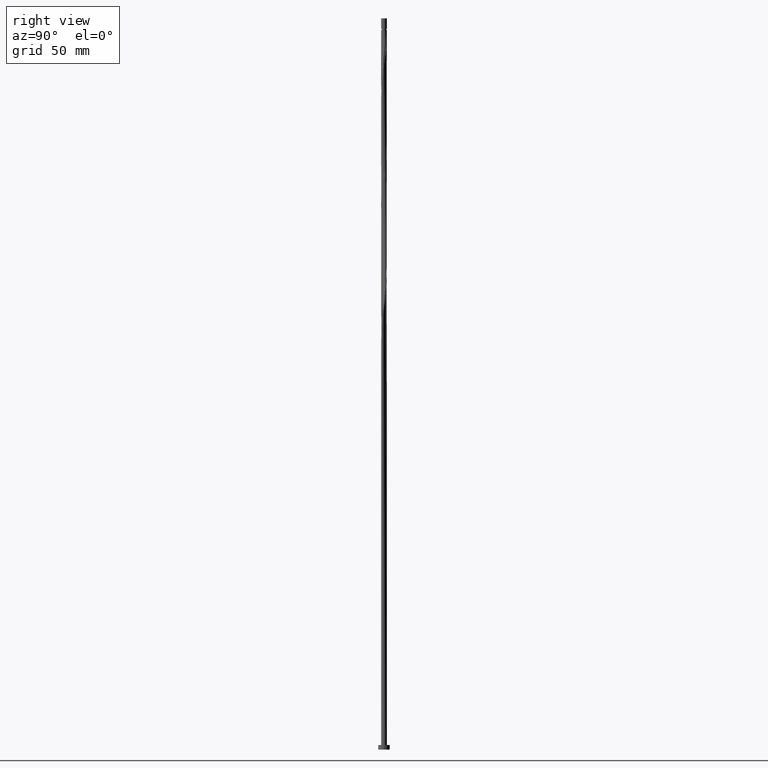
[diagram: clean part render]
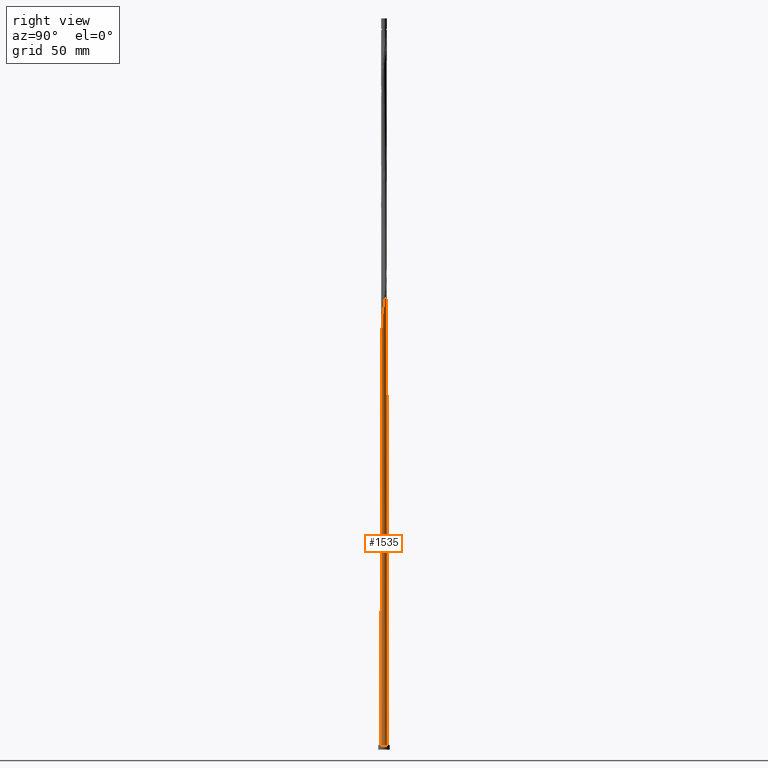
[diagram: same view with one face highlighted and labeled with its STEP entity id]
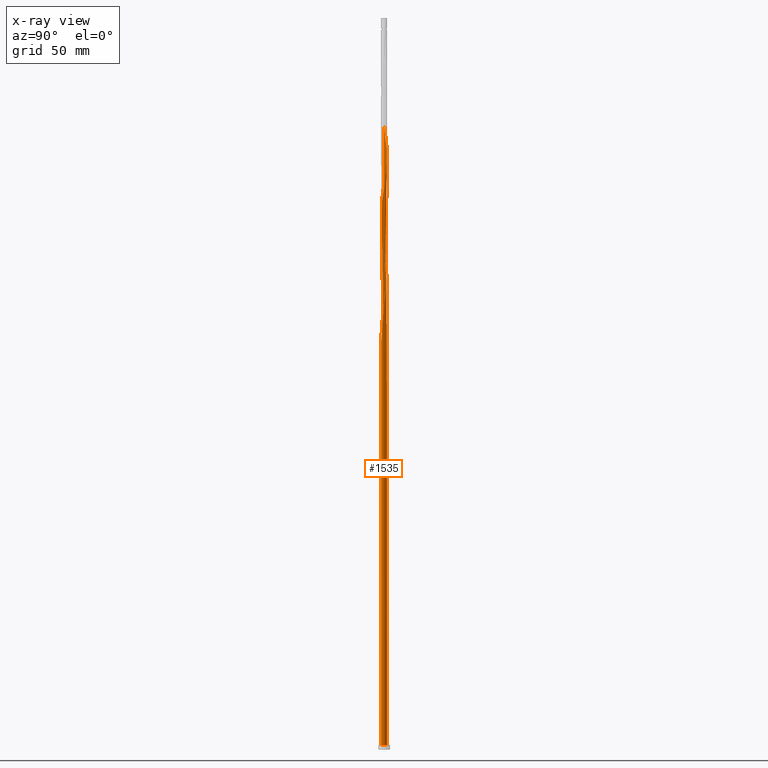
[diagram: x-ray of the same camera — body ghosted, the highlighted face saturated]
A machine part, right view. The second image highlights one B-rep face of the part: STEP entity #1535.
The next image is the same camera in x-ray: the body ghosted, the highlighted face saturated — about 0% of this face is hidden behind the body in this view.
In plain terms, the highlighted cylindrical surface (bore or boss wall) has radius 1.25 mm, axis along (-0, -0, -1).
Its self-contained STEP definition (entity closure, byte-faithful):
#5 = CARTESIAN_POINT ( 'NONE',  ( -0.5692968815294137119, -1.112834696026723247, 173.1227693201497573 ) ) ;
#12 = EDGE_CURVE ( 'NONE', #1615, #827, #559, .T. ) ;
#25 = CARTESIAN_POINT ( 'NONE',  ( -0.4439105247052356207, 1.176979049344605732, 157.1852693201497573 ) ) ;
#29 = CARTESIAN_POINT ( 'NONE',  ( 1.250000000000000000, 0.000000000000000000, 2.000000000000000000 ) ) ;
#32 = CARTESIAN_POINT ( 'NONE',  ( 0.03007788792010794229, 1.249638075867676612, 203.1227693201497004 ) ) ;
#36 = EDGE_CURVE ( 'NONE', #827, #1472, #1528, .T. ) ;
#44 = CARTESIAN_POINT ( 'NONE',  ( -1.253027039925622255, -0.1107225078990215217, 217.1852693201498710 ) ) ;
#47 = CARTESIAN_POINT ( 'NONE',  ( -1.250000000000000000, 0.000000000000000000, 2.000000000000000000 ) ) ;
#54 = CARTESIAN_POINT ( 'NONE',  ( 1.225000000000000977, 0.2487468592766574615, 191.8727693201497289 ) ) ;
#61 = EDGE_CURVE ( 'NONE', #513, #1472, #809, .T. ) ;
#64 = CARTESIAN_POINT ( 'NONE',  ( 1.196972960074381698, 0.3867712106542938177, 192.8102693201498141 ) ) ;
#66 = CARTESIAN_POINT ( 'NONE',  ( 0.000000000000000000, 0.000000000000000000, 152.4977693201497857 ) ) ;
#74 = CARTESIAN_POINT ( 'NONE',  ( 1.138935308977793159, 0.5150984002728630218, 193.7477693201497289 ) ) ;
#75 = ORIENTED_EDGE ( 'NONE', *, *, #278, .F. ) ;
#91 = CARTESIAN_POINT ( 'NONE',  ( 0.9957596457837593062, 0.7556207566157816524, 248.1227693201496720 ) ) ;
#92 = ORIENTED_EDGE ( 'NONE', *, *, #61, .T. ) ;
#101 = CARTESIAN_POINT ( 'NONE',  ( -0.8678159233401319117, 0.9106216336863132144, 262.1852693201499278 ) ) ;
#107 = CARTESIAN_POINT ( 'NONE',  ( 1.176979049344608397, -0.4439105247052367864, 239.6852693201498141 ) ) ;
#128 = CARTESIAN_POINT ( 'NONE',  ( -0.3073944042222366835, -1.211614080577170016, 174.9977693201497004 ) ) ;
#133 = DIRECTION ( 'NONE',  ( -0.000000000000000000, -0.000000000000000000, -1.000000000000000000 ) ) ;
#142 = CARTESIAN_POINT ( 'NONE',  ( 0.8678159233401315786, -0.9106216336863132144, 183.4352693201498141 ) ) ;
#173 = CARTESIAN_POINT ( 'NONE',  ( -0.8678159233401319117, 0.9106216336863132144, 209.6852693201497857 ) ) ;
#186 = CARTESIAN_POINT ( 'NONE',  ( 0.000000000000000000, 0.000000000000000000, 315.0000000000000000 ) ) ;
#192 = CARTESIAN_POINT ( 'NONE',  ( -1.176979049344608397, 0.4439105247052366754, 213.4352693201498710 ) ) ;
#204 = CARTESIAN_POINT ( 'NONE',  ( 0.9957596457837593062, 0.7556207566157816524, 195.6227693201497289 ) ) ;
#213 = CARTESIAN_POINT ( 'NONE',  ( 0.3073944042222367945, 1.211614080577170016, 253.7477693201496436 ) ) ;
#222 = CARTESIAN_POINT ( 'NONE',  ( 1.253027039925622255, 0.1107225078990213690, 243.4352693201498141 ) ) ;
#242 = CARTESIAN_POINT ( 'NONE',  ( -0.9957596457837590842, -0.7556207566157816524, 221.8727693201497004 ) ) ;
#245 = CARTESIAN_POINT ( 'NONE',  ( -1.196972960074381698, -0.3867712106542939843, 166.5602693201498425 ) ) ;
#251 = VERTEX_POINT ( 'NONE', #929 ) ;
#252 = CARTESIAN_POINT ( 'NONE',  ( -1.250000000000000000, 0.000000000000000000, 315.0000000000000000 ) ) ;
#258 = CARTESIAN_POINT ( 'NONE',  ( -1.249638075867676612, 0.03007788792010769943, 163.7477693201497573 ) ) ;
#265 = CARTESIAN_POINT ( 'NONE',  ( -1.250000000000000444, -9.365922884757042694E-16, 167.2972863980559168 ) ) ;
#269 = CARTESIAN_POINT ( 'NONE',  ( -1.112834696026723247, 0.5692968815294137119, 159.9977693201497573 ) ) ;
#278 = EDGE_CURVE ( 'NONE', #1058, #1514, #1361, .T. ) ;
#283 = CARTESIAN_POINT ( 'NONE',  ( -1.250000000000001776, 0.01504112145799079911, 163.8478895540185647 ) ) ;
#284 = CARTESIAN_POINT ( 'NONE',  ( 0.3867712106542939288, -1.196972960074381698, 179.6852693201498425 ) ) ;
#312 = CARTESIAN_POINT ( 'NONE',  ( -0.1107225078990212996, 1.253027039925622255, 204.0602693201498141 ) ) ;
#336 = CARTESIAN_POINT ( 'NONE',  ( 1.080897657881205953, 0.6434255898914326144, 194.6852693201498425 ) ) ;
#338 = CARTESIAN_POINT ( 'NONE',  ( -1.250000000000001998, -2.723953667678323534E-16, 268.9482522422436546 ) ) ;
#347 = CARTESIAN_POINT ( 'NONE',  ( -1.249638075867676612, 0.03007788792010769943, 216.2477693201497289 ) ) ;
#359 = CARTESIAN_POINT ( 'NONE',  ( -1.250000000000001998, 0.01504112145798415685, 268.8478895540185931 ) ) ;
#369 = CARTESIAN_POINT ( 'NONE',  ( 1.048690342708839429, -0.6946832383535915811, 237.8102693201498141 ) ) ;
#378 = CARTESIAN_POINT ( 'NONE',  ( -0.7556207566157816524, 0.9957596457837590842, 261.2477693201497004 ) ) ;
#387 = CARTESIAN_POINT ( 'NONE',  ( -0.4439105247052367864, -1.176979049344608397, 226.5602693201498710 ) ) ;
#390 = CARTESIAN_POINT ( 'NONE',  ( -1.250000000000003109, -0.1256297269073991807, 164.7865233212073690 ) ) ;
#401 = EDGE_LOOP ( 'NONE', ( #75, #1777, #656, #1128, #92, #1077, #684, #1382, #1505 ) ) ;
#408 = CARTESIAN_POINT ( 'NONE',  ( -0.9582531330244848933, 0.8026524360199516206, 158.1227693201497289 ) ) ;
#410 = CARTESIAN_POINT ( 'NONE',  ( 0.1107225078990214107, -1.253027039925622255, 177.8102693201498425 ) ) ;
#416 = CARTESIAN_POINT ( 'NONE',  ( -0.9957596457837575299, 0.7556207566157809863, 161.8727693201497857 ) ) ;
#418 = EDGE_CURVE ( 'NONE', #827, #1058, #635, .T. ) ;
#420 = DIRECTION ( 'NONE',  ( 0.000000000000000000, 0.000000000000000000, 1.000000000000000000 ) ) ;
#422 = CARTESIAN_POINT ( 'NONE',  ( 0.6434255898914326144, -1.080897657881205953, 181.5602693201498425 ) ) ;
#427 = CARTESIAN_POINT ( 'NONE',  ( -1.138935308977791161, 0.5150984002728626887, 163.7477693201497573 ) ) ;
#429 = AXIS2_PLACEMENT_3D ( 'NONE', #186, #1487, #1170 ) ;
#431 = CARTESIAN_POINT ( 'NONE',  ( -1.250000000000002220, 1.285482244541345349E-15, 163.9482522422436830 ) ) ;
#448 = CARTESIAN_POINT ( 'NONE',  ( 0.2487468592766579056, 1.224999999999999645, 152.4977693201497857 ) ) ;
#459 = CARTESIAN_POINT ( 'NONE',  ( 1.048690342708839429, -0.6946832383535915811, 185.3102693201498141 ) ) ;
#462 = FACE_OUTER_BOUND ( 'NONE', #401, .T. ) ;
#474 = CARTESIAN_POINT ( 'NONE',  ( 0.000000000000000000, 0.000000000000000000, 2.000000000000000000 ) ) ;
#491 = CARTESIAN_POINT ( 'NONE',  ( -0.2487468592766573505, 1.225000000000000977, 204.9977693201496436 ) ) ;
#500 = CARTESIAN_POINT ( 'NONE',  ( -0.8026524360199519537, -0.9582531330244850043, 223.7477693201497573 ) ) ;
#512 = CARTESIAN_POINT ( 'NONE',  ( -0.6946832383535914701, -1.048690342708839429, 224.6852693201497857 ) ) ;
#513 = VERTEX_POINT ( 'NONE', #29 ) ;
#520 = CARTESIAN_POINT ( 'NONE',  ( 0.9106216336863132144, 0.8678159233401314676, 249.0602693201498425 ) ) ;
#530 = CARTESIAN_POINT ( 'NONE',  ( 0.03007788792010794229, 1.249638075867676612, 255.6227693201497004 ) ) ;
#537 = CARTESIAN_POINT ( 'NONE',  ( -0.1708782837392370246, -1.246249111809732968, 228.4352693201498425 ) ) ;
#556 = CARTESIAN_POINT ( 'NONE',  ( -0.6434255898914328364, 1.080897657881205953, 155.3102693201497857 ) ) ;
#557 = CARTESIAN_POINT ( 'NONE',  ( -0.03007788792010775147, -1.249638075867676612, 176.8727693201497289 ) ) ;
#559 =( BOUNDED_CURVE ( )  B_SPLINE_CURVE ( 2, ( #1000, #1561, #967, #556, #1805, #1693, #408, #1536, #269, #1685, #848, #865, #258, #283, #431 ),
 .UNSPECIFIED., .F., .T. ) 
 B_SPLINE_CURVE_WITH_KNOTS ( ( 3, 2, 2, 2, 2, 2, 2, 3 ),
 ( 0.000000000000000000, 0.008928571428571396851, 0.01785714285714290472, 0.02678571428571430157, 0.03571428571428569843, 0.04464285714285708834, 0.05357142857142860315, 0.05453034012992177132 ),
 .UNSPECIFIED. ) 
 CURVE ( )  GEOMETRIC_REPRESENTATION_ITEM ( )  RATIONAL_B_SPLINE_CURVE ( ( 0.9090909090910003210, 0.9033747362666745273, 0.9090909090910003210, 0.9033747362666745273, 0.9090909090910003210, 0.9033747362666745273, 0.9090909090910003210, 0.9033747362666745273, 0.9090909090910003210, 0.9033747362666745273, 0.9090909090910003210, 0.9033747362666745273, 0.9090909090910003210, 0.9084770030215422176, 0.9079949616362705811 ) ) 
 REPRESENTATION_ITEM ( '' )  );
#575 = CARTESIAN_POINT ( 'NONE',  ( 0.9582531330244847823, -0.8026524360199519537, 184.3727693201497857 ) ) ;
#590 = CARTESIAN_POINT ( 'NONE',  ( 0.1107225078990215772, 1.253027039925620034, 153.4352693201497857 ) ) ;
#593 = CARTESIAN_POINT ( 'NONE',  ( -0.6946832383535914701, -1.048690342708839429, 172.1852693201497857 ) ) ;
#603 = CARTESIAN_POINT ( 'NONE',  ( 0.6946832383535916922, 1.048690342708839429, 198.4352693201498425 ) ) ;
#614 = CARTESIAN_POINT ( 'NONE',  ( -1.225000000000000977, -0.2487468592766576281, 218.1227693201497857 ) ) ;
#635 =( BOUNDED_CURVE ( )  B_SPLINE_CURVE ( 2, ( #1377, #390, #1516, #245, #821, #1562, #866, #1250, #1284, #593, #5, #1392, #128, #1537, #557, #410, #1258, #284, #842, #422, #984, #142, #575, #459, #1018, #1317, #756, #1049, #1009, #1604, #54, #64, #74, #336, #204, #1614, #636, #603, #1578, #1293, #1190, #1145, #32, #312, #491, #1179, #1463, #1703, #884, #173, #1442, #1729, #745, #192, #766, #1305, #347, #44, #614, #779, #1167, #925, #242, #1066, #500, #512, #826, #387, #1356, #537, #1765, #934, #1776, #1495, #810, #1057, #1367, #1634, #645, #369, #683, #107, #953, #1092, #1513, #222, #1484, #1521, #1781, #799, #91, #520, #667, #1218, #1374, #1381, #213, #1198, #530, #1085, #1076, #818, #1642, #1651, #378, #101, #1233, #1623, #960, #943, #1659, #1504, #676, #359, #1226 ),
 .UNSPECIFIED., .F., .T. ) 
 B_SPLINE_CURVE_WITH_KNOTS ( ( 3, 2, 2, 2, 2, 2, 2, 2, 2, 2, 2, 2, 2, 2, 2, 2, 2, 2, 2, 2, 2, 2, 2, 2, 2, 2, 2, 2, 2, 2, 2, 2, 2, 2, 2, 2, 2, 2, 2, 2, 2, 2, 2, 2, 2, 2, 2, 2, 2, 2, 2, 2, 2, 2, 2, 2, 2, 3 ),
 ( 0.05453034012992177132, 0.06250000000000000000, 0.07142857142857139685, 0.08035714285714290472, 0.08928571428571430157, 0.09821428571428569843, 0.1071428571428570953, 0.1160714285714286031, 0.1250000000000000000, 0.1339285714285713969, 0.1428571428571429047, 0.1517857142857143016, 0.1607142857142856984, 0.1696428571428570953, 0.1785714285714286031, 0.1875000000000000000, 0.1964285714285713969, 0.2053571428571429047, 0.2142857142857143016, 0.2232142857142856984, 0.2321428571428570953, 0.2410714285714286031, 0.2500000000000000000, 0.2589285714285713969, 0.2678571428571429047, 0.2767857142857143016, 0.2857142857142856984, 0.2946428571428570953, 0.3035714285714286031, 0.3125000000000000000, 0.3214285714285713969, 0.3303571428571429047, 0.3392857142857143016, 0.3482142857142856984, 0.3571428571428570953, 0.3660714285714286031, 0.3750000000000000000, 0.3839285714285713969, 0.3928571428571429047, 0.4017857142857143016, 0.4107142857142856984, 0.4196428571428570953, 0.4285714285714286031, 0.4375000000000000000, 0.4464285714285713969, 0.4553571428571429047, 0.4642857142857143016, 0.4732142857142856984, 0.4821428571428570953, 0.4910714285714286031, 0.5000000000000000000, 0.5089285714285713969, 0.5178571428571427937, 0.5267857142857143016, 0.5357142857142856984, 0.5446428571428572063, 0.5535714285714286031, 0.5545303401299221946 ),
 .UNSPECIFIED. ) 
 CURVE ( )  GEOMETRIC_REPRESENTATION_ITEM ( )  RATIONAL_B_SPLINE_CURVE ( ( 0.9079949616362705811, 0.9039886423361327417, 0.9090909090910003210, 0.9033747362666745273, 0.9090909090910003210, 0.9033747362666745273, 0.9090909090910003210, 0.9033747362666745273, 0.9090909090910003210, 0.9033747362666745273, 0.9090909090910003210, 0.9033747362666745273, 0.9090909090910003210, 0.9033747362666745273, 0.9090909090910003210, 0.9033747362666745273, 0.9090909090910003210, 0.9033747362666745273, 0.9090909090910003210, 0.9033747362666745273, 0.9090909090910003210, 0.9033747362666745273, 0.9090909090910003210, 0.9033747362666745273, 0.9090909090910003210, 0.9033747362666745273, 0.9090909090910003210, 0.9033747362666745273, 0.9090909090910003210, 0.9033747362666745273, 0.9090909090910003210, 0.9033747362666745273, 0.9090909090910003210, 0.9033747362666745273, 0.9090909090910003210, 0.9033747362666745273, 0.9090909090910003210, 0.9033747362666745273, 0.9090909090910003210, 0.9033747362666745273, 0.9090909090910003210, 0.9033747362666745273, 0.9090909090910003210, 0.9033747362666745273, 0.9090909090910003210, 0.9033747362666745273, 0.9090909090910003210, 0.9033747362666745273, 0.9090909090910003210, 0.9033747362666745273, 0.9090909090910003210, 0.9033747362666745273, 0.9090909090910003210, 0.9033747362666745273, 0.9090909090910003210, 0.9033747362666745273, 0.9090909090910003210, 0.9033747362666745273, 0.9090909090910003210, 0.9033747362666745273, 0.9090909090910003210, 0.9033747362666745273, 0.9090909090910003210, 0.9033747362666745273, 0.9090909090910003210, 0.9033747362666745273, 0.9090909090910003210, 0.9033747362666745273, 0.9090909090910003210, 0.9033747362666745273, 0.9090909090910003210, 0.9033747362666745273, 0.9090909090910003210, 0.9033747362666745273, 0.9090909090910003210, 0.9033747362666745273, 0.9090909090910003210, 0.9033747362666745273, 0.9090909090910003210, 0.9033747362666745273, 0.9090909090910003210, 0.9033747362666745273, 0.9090909090910003210, 0.9033747362666745273, 0.9090909090910003210, 0.9033747362666745273, 0.9090909090910003210, 0.9033747362666745273, 0.9090909090910003210, 0.9033747362666745273, 0.9090909090910003210, 0.9033747362666745273, 0.9090909090910003210, 0.9033747362666745273, 0.9090909090910003210, 0.9033747362666745273, 0.9090909090910003210, 0.9033747362666745273, 0.9090909090910003210, 0.9033747362666745273, 0.9090909090910003210, 0.9033747362666745273, 0.9090909090910003210, 0.9033747362666745273, 0.9090909090910003210, 0.9033747362666745273, 0.9090909090910003210, 0.9033747362666745273, 0.9090909090910003210, 0.9033747362666745273, 0.9090909090910003210, 0.9033747362666745273, 0.9090909090910003210, 0.9084770030215418846, 0.9079949616362701370 ) ) 
 REPRESENTATION_ITEM ( '' )  );
#636 = CARTESIAN_POINT ( 'NONE',  ( 0.8026524360199519537, 0.9582531330244847823, 197.4977693201497289 ) ) ;
#645 = CARTESIAN_POINT ( 'NONE',  ( 0.9582531330244847823, -0.8026524360199519537, 236.8727693201497289 ) ) ;
#656 = ORIENTED_EDGE ( 'NONE', *, *, #36, .T. ) ;
#667 = CARTESIAN_POINT ( 'NONE',  ( 0.8026524360199519537, 0.9582531330244847823, 249.9977693201496720 ) ) ;
#676 = CARTESIAN_POINT ( 'NONE',  ( -1.249638075867676612, 0.03007788792010769943, 268.7477693201496436 ) ) ;
#683 = CARTESIAN_POINT ( 'NONE',  ( 1.112834696026723247, -0.5692968815294138230, 238.7477693201497004 ) ) ;
#684 = ORIENTED_EDGE ( 'NONE', *, *, #12, .F. ) ;
#693 = DIRECTION ( 'NONE',  ( -1.000000000000000000, 0.000000000000000000, 0.000000000000000000 ) ) ;
#706 = CARTESIAN_POINT ( 'NONE',  ( -1.196972960074379033, 0.3867712106542936512, 164.6852693201497857 ) ) ;
#723 = CARTESIAN_POINT ( 'NONE',  ( -1.250000000000001110, 0.1256297269073989586, 166.4590153190922592 ) ) ;
#730 = CARTESIAN_POINT ( 'NONE',  ( -0.1708782837392364695, 1.246249111809731192, 155.3102693201497289 ) ) ;
#745 = CARTESIAN_POINT ( 'NONE',  ( -1.112834696026723247, 0.5692968815294137119, 212.4977693201497289 ) ) ;
#756 = CARTESIAN_POINT ( 'NONE',  ( 1.211614080577170016, -0.3073944042222367945, 188.1227693201497004 ) ) ;
#759 = DIRECTION ( 'NONE',  ( 1.000000000000000000, 0.000000000000000000, 0.000000000000000000 ) ) ;
#766 = CARTESIAN_POINT ( 'NONE',  ( -1.211614080577170016, 0.3073944042222366280, 214.3727693201497004 ) ) ;
#775 = AXIS2_PLACEMENT_3D ( 'NONE', #1678, #420, #841 ) ;
#779 = CARTESIAN_POINT ( 'NONE',  ( -1.196972960074381698, -0.3867712106542939843, 219.0602693201498141 ) ) ;
#799 = CARTESIAN_POINT ( 'NONE',  ( 1.080897657881205953, 0.6434255898914326144, 247.1852693201498141 ) ) ;
#809 = CIRCLE ( 'NONE', #775, 1.250000000000000000 ) ;
#810 = CARTESIAN_POINT ( 'NONE',  ( 0.5150984002728631328, -1.138935308977793159, 233.1227693201497289 ) ) ;
#818 = CARTESIAN_POINT ( 'NONE',  ( -0.3867712106542940398, 1.196972960074381698, 258.4352693201498141 ) ) ;
#820 = DIRECTION ( 'NONE',  ( 0.000000000000000000, -0.000000000000000000, -1.000000000000000000 ) ) ;
#821 = CARTESIAN_POINT ( 'NONE',  ( -1.138935308977793159, -0.5150984002728631328, 167.4977693201497289 ) ) ;
#826 = CARTESIAN_POINT ( 'NONE',  ( -0.5692968815294137119, -1.112834696026723247, 225.6227693201497004 ) ) ;
#827 = VERTEX_POINT ( 'NONE', #918 ) ;
#834 = CARTESIAN_POINT ( 'NONE',  ( -1.250000000000000000, 0.000000000000000000, 315.0000000000000000 ) ) ;
#841 = DIRECTION ( 'NONE',  ( 1.000000000000000000, 0.000000000000000000, 0.000000000000000000 ) ) ;
#842 = CARTESIAN_POINT ( 'NONE',  ( 0.5150984002728631328, -1.138935308977793159, 180.6227693201497004 ) ) ;
#848 = CARTESIAN_POINT ( 'NONE',  ( -1.211614080577170016, 0.3073944042222366280, 161.8727693201497289 ) ) ;
#865 = CARTESIAN_POINT ( 'NONE',  ( -1.246249111809732968, 0.1708782837392369691, 162.8102693201497857 ) ) ;
#866 = CARTESIAN_POINT ( 'NONE',  ( -0.9957596457837590842, -0.7556207566157816524, 169.3727693201497857 ) ) ;
#884 = CARTESIAN_POINT ( 'NONE',  ( -0.7556207566157816524, 0.9957596457837590842, 208.7477693201497573 ) ) ;
#918 = CARTESIAN_POINT ( 'NONE',  ( -1.250000000000002220, 1.285482244541345349E-15, 163.9482522422436830 ) ) ;
#923 = VECTOR ( 'NONE', #133, 1000.000000000000000 ) ;
#925 = CARTESIAN_POINT ( 'NONE',  ( -1.080897657881205953, -0.6434255898914326144, 220.9352693201498710 ) ) ;
#929 = CARTESIAN_POINT ( 'NONE',  ( 0.2487468592766579056, 1.224999999999999645, 152.4977693201497857 ) ) ;
#934 = CARTESIAN_POINT ( 'NONE',  ( 0.1107225078990214107, -1.253027039925622255, 230.3102693201498710 ) ) ;
#943 = CARTESIAN_POINT ( 'NONE',  ( -1.176979049344608397, 0.4439105247052366754, 265.9352693201498710 ) ) ;
#953 = CARTESIAN_POINT ( 'NONE',  ( 1.211614080577170016, -0.3073944042222367945, 240.6227693201497289 ) ) ;
#960 = CARTESIAN_POINT ( 'NONE',  ( -1.112834696026723247, 0.5692968815294137119, 264.9977693201497004 ) ) ;
#967 = CARTESIAN_POINT ( 'NONE',  ( -0.5150984002728632438, 1.138935308977793159, 154.3727693201497004 ) ) ;
#980 = CARTESIAN_POINT ( 'NONE',  ( -0.9106216336863114380, 0.8678159233401304684, 160.9352693201497857 ) ) ;
#984 = CARTESIAN_POINT ( 'NONE',  ( 0.7556207566157816524, -0.9957596457837590842, 182.4977693201497857 ) ) ;
#1000 = CARTESIAN_POINT ( 'NONE',  ( -0.2487468592766574060, 1.225000000000001199, 152.4977693201497857 ) ) ;
#1009 = CARTESIAN_POINT ( 'NONE',  ( 1.249638075867676612, -0.03007788792010785903, 189.9977693201497004 ) ) ;
#1015 = CARTESIAN_POINT ( 'NONE',  ( -0.5692968815294127127, 1.112834696026721248, 158.1227693201497573 ) ) ;
#1018 = CARTESIAN_POINT ( 'NONE',  ( 1.112834696026723247, -0.5692968815294138230, 186.2477693201497289 ) ) ;
#1021 = CYLINDRICAL_SURFACE ( 'NONE', #429, 1.250000000000000000 ) ;
#1031 = VECTOR ( 'NONE', #1221, 1000.000000000000000 ) ;
#1049 = CARTESIAN_POINT ( 'NONE',  ( 1.246249111809732746, -0.1708782837392371634, 189.0602693201498141 ) ) ;
#1057 = CARTESIAN_POINT ( 'NONE',  ( 0.6434255898914326144, -1.080897657881205953, 234.0602693201498994 ) ) ;
#1058 = VERTEX_POINT ( 'NONE', #338 ) ;
#1066 = CARTESIAN_POINT ( 'NONE',  ( -0.9106216336863132144, -0.8678159233401315786, 222.8102693201498710 ) ) ;
#1074 = EDGE_CURVE ( 'NONE', #1615, #251, #1412, .T. ) ;
#1076 = CARTESIAN_POINT ( 'NONE',  ( -0.2487468592766573505, 1.225000000000000977, 257.4977693201497004 ) ) ;
#1077 = ORIENTED_EDGE ( 'NONE', *, *, #36, .F. ) ;
#1085 = CARTESIAN_POINT ( 'NONE',  ( -0.1107225078990212996, 1.253027039925622255, 256.5602693201498141 ) ) ;
#1092 = CARTESIAN_POINT ( 'NONE',  ( 1.246249111809732746, -0.1708782837392371634, 241.5602693201498425 ) ) ;
#1114 = CARTESIAN_POINT ( 'NONE',  ( -1.080897657881204177, 0.6434255898914318372, 162.8102693201497857 ) ) ;
#1128 = ORIENTED_EDGE ( 'NONE', *, *, #1553, .T. ) ;
#1145 = CARTESIAN_POINT ( 'NONE',  ( 0.1708782837392372467, 1.246249111809732746, 202.1852693201498710 ) ) ;
#1167 = CARTESIAN_POINT ( 'NONE',  ( -1.138935308977793159, -0.5150984002728631328, 219.9977693201497573 ) ) ;
#1170 = DIRECTION ( 'NONE',  ( -1.000000000000000000, 0.000000000000000000, 0.000000000000000000 ) ) ;
#1179 = CARTESIAN_POINT ( 'NONE',  ( -0.3867712106542940398, 1.196972960074381698, 205.9352693201498425 ) ) ;
#1182 = CARTESIAN_POINT ( 'NONE',  ( -1.250000000000000444, -9.365922884757042694E-16, 167.2972863980559168 ) ) ;
#1190 = CARTESIAN_POINT ( 'NONE',  ( 0.3073944042222367945, 1.211614080577170016, 201.2477693201496720 ) ) ;
#1198 = CARTESIAN_POINT ( 'NONE',  ( 0.1708782837392372467, 1.246249111809732746, 254.6852693201498425 ) ) ;
#1218 = CARTESIAN_POINT ( 'NONE',  ( 0.6946832383535916922, 1.048690342708839429, 250.9352693201498710 ) ) ;
#1221 = DIRECTION ( 'NONE',  ( -0.000000000000000000, -0.000000000000000000, -1.000000000000000000 ) ) ;
#1226 = CARTESIAN_POINT ( 'NONE',  ( -1.250000000000001998, -2.723953667678323534E-16, 268.9482522422436546 ) ) ;
#1233 = CARTESIAN_POINT ( 'NONE',  ( -0.9582531330244848933, 0.8026524360199516206, 263.1227693201497004 ) ) ;
#1250 = CARTESIAN_POINT ( 'NONE',  ( -0.9106216336863132144, -0.8678159233401315786, 170.3102693201498141 ) ) ;
#1258 = CARTESIAN_POINT ( 'NONE',  ( 0.2487468592766575171, -1.225000000000000977, 178.7477693201497004 ) ) ;
#1277 = CIRCLE ( 'NONE', #1423, 1.250000000000000000 ) ;
#1280 = CARTESIAN_POINT ( 'NONE',  ( -0.03007788792010740106, 1.249638075867675280, 154.3727693201497573 ) ) ;
#1283 = EDGE_CURVE ( 'NONE', #1514, #251, #1650, .T. ) ;
#1284 = CARTESIAN_POINT ( 'NONE',  ( -0.8026524360199519537, -0.9582531330244850043, 171.2477693201498141 ) ) ;
#1293 = CARTESIAN_POINT ( 'NONE',  ( 0.4439105247052369529, 1.176979049344608175, 200.3102693201498425 ) ) ;
#1305 = CARTESIAN_POINT ( 'NONE',  ( -1.246249111809732968, 0.1708782837392369691, 215.3102693201498141 ) ) ;
#1317 = CARTESIAN_POINT ( 'NONE',  ( 1.176979049344608397, -0.4439105247052367864, 187.1852693201498710 ) ) ;
#1356 = CARTESIAN_POINT ( 'NONE',  ( -0.3073944042222366835, -1.211614080577170016, 227.4977693201497289 ) ) ;
#1361 = LINE ( 'NONE', #252, #1031 ) ;
#1367 = CARTESIAN_POINT ( 'NONE',  ( 0.7556207566157816524, -0.9957596457837590842, 234.9977693201497004 ) ) ;
#1374 = CARTESIAN_POINT ( 'NONE',  ( 0.5692968815294138230, 1.112834696026723247, 251.8727693201496720 ) ) ;
#1377 = CARTESIAN_POINT ( 'NONE',  ( -1.250000000000002220, 1.285482244541345349E-15, 163.9482522422436830 ) ) ;
#1381 = CARTESIAN_POINT ( 'NONE',  ( 0.4439105247052369529, 1.176979049344608175, 252.8102693201498141 ) ) ;
#1382 = ORIENTED_EDGE ( 'NONE', *, *, #1074, .T. ) ;
#1392 = CARTESIAN_POINT ( 'NONE',  ( -0.4439105247052367864, -1.176979049344608397, 174.0602693201498710 ) ) ;
#1397 = CARTESIAN_POINT ( 'NONE',  ( -1.224999999999999645, 0.2487468592766575726, 165.6227693201497573 ) ) ;
#1412 = CIRCLE ( 'NONE', #1675, 1.250000000000000000 ) ;
#1423 = AXIS2_PLACEMENT_3D ( 'NONE', #474, #1597, #759 ) ;
#1442 = CARTESIAN_POINT ( 'NONE',  ( -0.9582531330244848933, 0.8026524360199516206, 210.6227693201497004 ) ) ;
#1463 = CARTESIAN_POINT ( 'NONE',  ( -0.5150984002728632438, 1.138935308977793159, 206.8727693201497289 ) ) ;
#1472 = VERTEX_POINT ( 'NONE', #47 ) ;
#1484 = CARTESIAN_POINT ( 'NONE',  ( 1.225000000000000977, 0.2487468592766574615, 244.3727693201497289 ) ) ;
#1487 = DIRECTION ( 'NONE',  ( -0.000000000000000000, -0.000000000000000000, -1.000000000000000000 ) ) ;
#1495 = CARTESIAN_POINT ( 'NONE',  ( 0.3867712106542939288, -1.196972960074381698, 232.1852693201498141 ) ) ;
#1504 = CARTESIAN_POINT ( 'NONE',  ( -1.246249111809732968, 0.1708782837392369691, 267.8102693201498141 ) ) ;
#1505 = ORIENTED_EDGE ( 'NONE', *, *, #1283, .F. ) ;
#1513 = CARTESIAN_POINT ( 'NONE',  ( 1.249638075867676612, -0.03007788792010785903, 242.4977693201497004 ) ) ;
#1514 = VERTEX_POINT ( 'NONE', #1182 ) ;
#1516 = CARTESIAN_POINT ( 'NONE',  ( -1.225000000000000977, -0.2487468592766576281, 165.6227693201497573 ) ) ;
#1521 = CARTESIAN_POINT ( 'NONE',  ( 1.196972960074381698, 0.3867712106542938177, 245.3102693201498425 ) ) ;
#1528 = LINE ( 'NONE', #834, #923 ) ;
#1535 = ADVANCED_FACE ( 'NONE', ( #462 ), #1021, .T. ) ;
#1536 = CARTESIAN_POINT ( 'NONE',  ( -1.048690342708839429, 0.6946832383535914701, 159.0602693201498141 ) ) ;
#1537 = CARTESIAN_POINT ( 'NONE',  ( -0.1708782837392370246, -1.246249111809732968, 175.9352693201498141 ) ) ;
#1541 = CARTESIAN_POINT ( 'NONE',  ( -0.8026524360199506214, 0.9582531330244838941, 159.9977693201497857 ) ) ;
#1553 = EDGE_CURVE ( 'NONE', #1472, #513, #1277, .T. ) ;
#1561 = CARTESIAN_POINT ( 'NONE',  ( -0.3867712106542940398, 1.196972960074381698, 153.4352693201498425 ) ) ;
#1562 = CARTESIAN_POINT ( 'NONE',  ( -1.080897657881205953, -0.6434255898914326144, 168.4352693201497289 ) ) ;
#1578 = CARTESIAN_POINT ( 'NONE',  ( 0.5692968815294138230, 1.112834696026723247, 199.3727693201497004 ) ) ;
#1597 = DIRECTION ( 'NONE',  ( 0.000000000000000000, 0.000000000000000000, 1.000000000000000000 ) ) ;
#1600 = CARTESIAN_POINT ( 'NONE',  ( -0.2487468592766574060, 1.225000000000001199, 152.4977693201497857 ) ) ;
#1604 = CARTESIAN_POINT ( 'NONE',  ( 1.253027039925622255, 0.1107225078990213690, 190.9352693201498141 ) ) ;
#1611 = CARTESIAN_POINT ( 'NONE',  ( -0.3073944042222359618, 1.211614080577168240, 156.2477693201497289 ) ) ;
#1614 = CARTESIAN_POINT ( 'NONE',  ( 0.9106216336863132144, 0.8678159233401314676, 196.5602693201498141 ) ) ;
#1615 = VERTEX_POINT ( 'NONE', #1600 ) ;
#1623 = CARTESIAN_POINT ( 'NONE',  ( -1.048690342708839429, 0.6946832383535914701, 264.0602693201498141 ) ) ;
#1634 = CARTESIAN_POINT ( 'NONE',  ( 0.8678159233401315786, -0.9106216336863132144, 235.9352693201498141 ) ) ;
#1642 = CARTESIAN_POINT ( 'NONE',  ( -0.5150984002728632438, 1.138935308977793159, 259.3727693201497573 ) ) ;
#1650 =( BOUNDED_CURVE ( )  B_SPLINE_CURVE ( 2, ( #265, #723, #1397, #706, #427, #1114, #416, #980, #1541, #1698, #1015, #25, #1611, #730, #1280, #590, #448 ),
 .UNSPECIFIED., .F., .T. ) 
 B_SPLINE_CURVE_WITH_KNOTS ( ( 3, 2, 2, 2, 2, 2, 2, 2, 3 ),
 ( 0.9295303401299217505, 0.9375000000000000000, 0.9464285714285713969, 0.9553571428571429047, 0.9642857142857143016, 0.9732142857142856984, 0.9821428571428570953, 0.9910714285714286031, 1.000000000000000000 ),
 .UNSPECIFIED. ) 
 CURVE ( )  GEOMETRIC_REPRESENTATION_ITEM ( )  RATIONAL_B_SPLINE_CURVE ( ( 0.9079949616362640308, 0.9039886423361261913, 0.9090909090909936596, 0.9033747362666680880, 0.9090909090909936596, 0.9033747362666680880, 0.9090909090909936596, 0.9033747362666680880, 0.9090909090909936596, 0.9033747362666680880, 0.9090909090909936596, 0.9033747362666680880, 0.9090909090909936596, 0.9033747362666680880, 0.9090909090909936596, 0.9033747362666680880, 0.9090909090909936596 ) ) 
 REPRESENTATION_ITEM ( '' )  );
#1651 = CARTESIAN_POINT ( 'NONE',  ( -0.6434255898914328364, 1.080897657881205953, 260.3102693201497573 ) ) ;
#1659 = CARTESIAN_POINT ( 'NONE',  ( -1.211614080577170016, 0.3073944042222366280, 266.8727693201497573 ) ) ;
#1675 = AXIS2_PLACEMENT_3D ( 'NONE', #66, #820, #693 ) ;
#1678 = CARTESIAN_POINT ( 'NONE',  ( 0.000000000000000000, 0.000000000000000000, 2.000000000000000000 ) ) ;
#1685 = CARTESIAN_POINT ( 'NONE',  ( -1.176979049344608397, 0.4439105247052366754, 160.9352693201498425 ) ) ;
#1693 = CARTESIAN_POINT ( 'NONE',  ( -0.8678159233401319117, 0.9106216336863132144, 157.1852693201498141 ) ) ;
#1698 = CARTESIAN_POINT ( 'NONE',  ( -0.6946832383535901378, 1.048690342708837875, 159.0602693201497857 ) ) ;
#1703 = CARTESIAN_POINT ( 'NONE',  ( -0.6434255898914328364, 1.080897657881205953, 207.8102693201498141 ) ) ;
#1729 = CARTESIAN_POINT ( 'NONE',  ( -1.048690342708839429, 0.6946832383535914701, 211.5602693201497857 ) ) ;
#1765 = CARTESIAN_POINT ( 'NONE',  ( -0.03007788792010775147, -1.249638075867676612, 229.3727693201497004 ) ) ;
#1776 = CARTESIAN_POINT ( 'NONE',  ( 0.2487468592766575171, -1.225000000000000977, 231.2477693201497573 ) ) ;
#1777 = ORIENTED_EDGE ( 'NONE', *, *, #418, .F. ) ;
#1781 = CARTESIAN_POINT ( 'NONE',  ( 1.138935308977793159, 0.5150984002728630218, 246.2477693201497004 ) ) ;
#1805 = CARTESIAN_POINT ( 'NONE',  ( -0.7556207566157816524, 0.9957596457837590842, 156.2477693201497004 ) ) ;